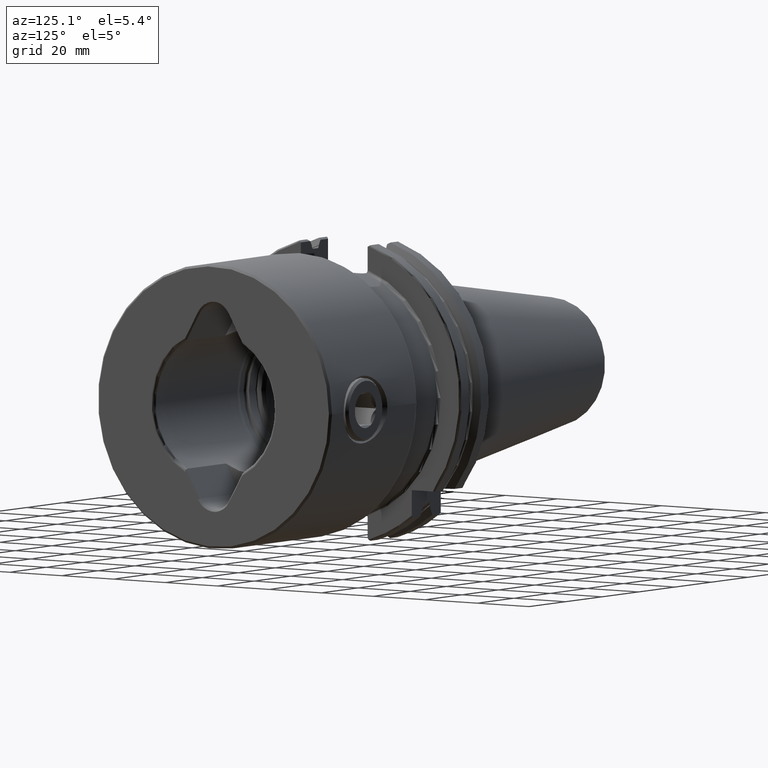
[diagram: clean part render]
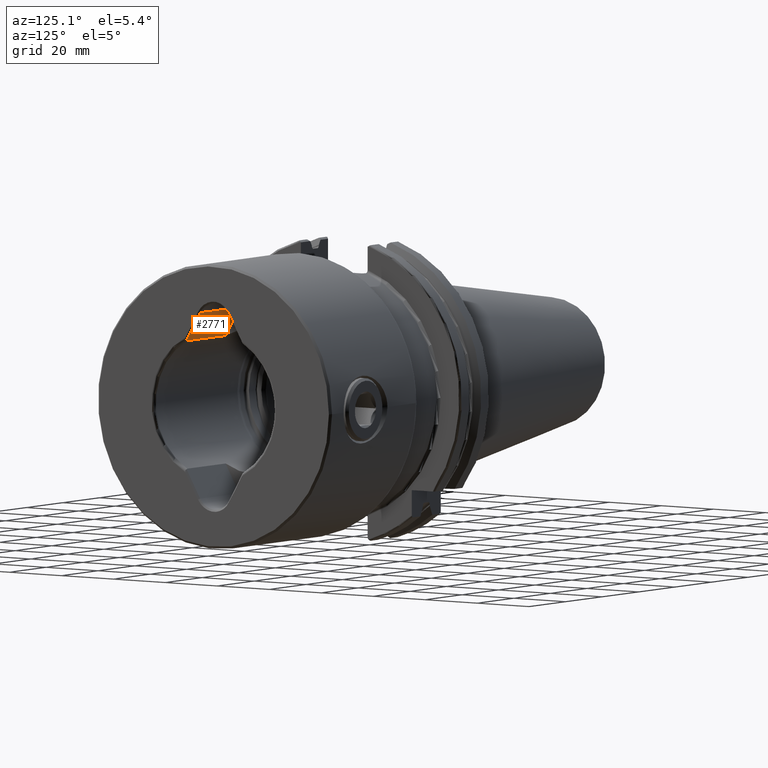
[diagram: same view with one face highlighted and labeled with its STEP entity id]
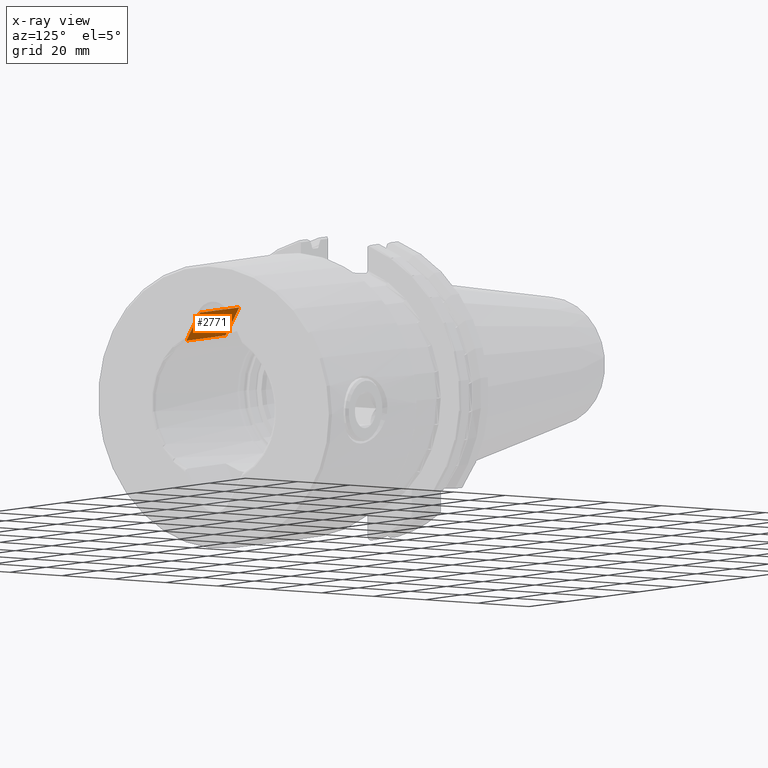
[diagram: x-ray of the same camera — body ghosted, the highlighted face saturated]
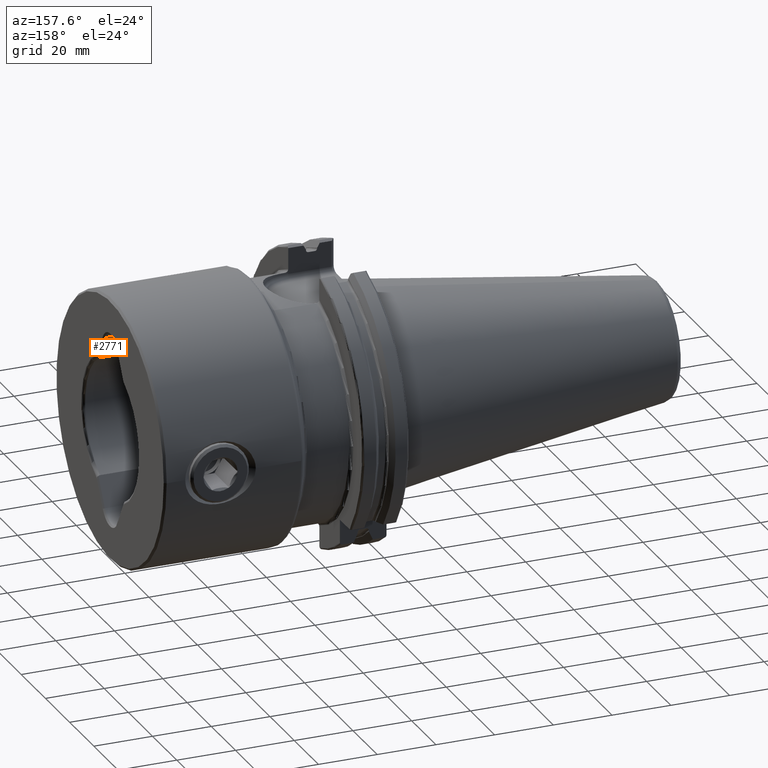
[diagram: same view with one face highlighted and labeled with its STEP entity id]
A machine part, auxiliary view. The second image highlights one B-rep face of the part: STEP entity #2771.
The next image is the same camera in x-ray: the body ghosted, the highlighted face saturated — about 0% of this face is hidden behind the body in this view.
A second angle (auxiliary view) of the same face is appended — the face is thin or edge-on in the first view.
In plain terms, the highlighted planar face has unit normal (0, 0.866, -0.5).
Its self-contained STEP definition (entity closure, byte-faithful):
#22 = EDGE_CURVE ( 'NONE', #1779, #3345, #519, .T. ) ;
#47 = VERTEX_POINT ( 'NONE', #2443 ) ;
#82 = CARTESIAN_POINT ( 'NONE',  ( 62.99999999988631300, -5.629165124598847200, 29.40000000000002000 ) ) ;
#254 = FACE_OUTER_BOUND ( 'NONE', #987, .T. ) ;
#278 = VERTEX_POINT ( 'NONE', #82 ) ;
#281 = DIRECTION ( 'NONE',  ( 1.000000000000000000, -0.0000000000000000000, -0.0000000000000000000 ) ) ;
#376 = CARTESIAN_POINT ( 'NONE',  ( 84.09733759271534800, -10.91466260670260300, 20.24524981771891400 ) ) ;
#435 = CARTESIAN_POINT ( 'NONE',  ( 84.19205809741288200, -10.90062184131696700, 20.26956913674399300 ) ) ;
#519 = LINE ( 'NONE', #4418, #2069 ) ;
#575 = CARTESIAN_POINT ( 'NONE',  ( 62.99999999988631300, -5.629165124598847200, 29.40000000000002000 ) ) ;
#920 = CARTESIAN_POINT ( 'NONE',  ( 62.99999999988631300, -10.91466260670261000, 20.24524981771891100 ) ) ;
#969 = VECTOR ( 'NONE', #4715, 1000.000000000000100 ) ;
#987 = EDGE_LOOP ( 'NONE', ( #3450, #1639, #1030, #4433, #2255 ) ) ;
#1030 = ORIENTED_EDGE ( 'NONE', *, *, #22, .F. ) ;
#1031 = DIRECTION ( 'NONE',  ( 7.850462293468523500E-017, 0.4999999999999985000, 0.8660254037844393700 ) ) ;
#1054 = DIRECTION ( 'NONE',  ( 1.000000000000000000, -0.0000000000000000000, -0.0000000000000000000 ) ) ;
#1481 = EDGE_CURVE ( 'NONE', #278, #1590, #3787, .T. ) ;
#1568 = CARTESIAN_POINT ( 'NONE',  ( 84.43521794263405400, -10.82312084634845200, 20.40380479766659500 ) ) ;
#1590 = VERTEX_POINT ( 'NONE', #2292 ) ;
#1639 = ORIENTED_EDGE ( 'NONE', *, *, #2163, .F. ) ;
#1748 = LINE ( 'NONE', #575, #969 ) ;
#1779 = VERTEX_POINT ( 'NONE', #920 ) ;
#1951 = AXIS2_PLACEMENT_3D ( 'NONE', #2326, #2711, #3044 ) ;
#1981 = LINE ( 'NONE', #3927, #3495 ) ;
#2069 = VECTOR ( 'NONE', #281, 1000.000000000000000 ) ;
#2163 = EDGE_CURVE ( 'NONE', #3345, #47, #2321, .T. ) ;
#2255 = ORIENTED_EDGE ( 'NONE', *, *, #1481, .T. ) ;
#2292 = CARTESIAN_POINT ( 'NONE',  ( 84.49999999988632700, -5.629165124598844500, 29.40000000000001600 ) ) ;
#2321 = B_SPLINE_CURVE_WITH_KNOTS ( 'NONE', 3,
 ( #3008, #376, #435, #3841, #1568, #3825 ),
 .UNSPECIFIED., .F., .F.,
 ( 4, 2, 4 ),
 ( 1.969124869716074900E-007, 0.0002877114490896072500, 0.0005752259856922428400 ),
 .UNSPECIFIED. ) ;
#2326 = CARTESIAN_POINT ( 'NONE',  ( 62.99999999988631300, -5.629165124598847200, 29.40000000000002000 ) ) ;
#2443 = CARTESIAN_POINT ( 'NONE',  ( 84.49999999988631300, -10.78803012059511900, 20.46458371754582800 ) ) ;
#2541 = CARTESIAN_POINT ( 'NONE',  ( 84.00000000000000000, -10.91466260670261000, 20.24524981771891100 ) ) ;
#2563 = CARTESIAN_POINT ( 'NONE',  ( 62.99999999988631300, -5.629165124598847200, 29.40000000000002000 ) ) ;
#2711 = DIRECTION ( 'NONE',  ( 0.0000000000000000000, 0.8660254037844394800, -0.4999999999999985600 ) ) ;
#2771 = ADVANCED_FACE ( 'NONE', ( #254 ), #3765, .T. ) ;
#3008 = CARTESIAN_POINT ( 'NONE',  ( 84.00000000000000000, -10.91466260670261000, 20.24524981771891100 ) ) ;
#3044 = DIRECTION ( 'NONE',  ( 0.0000000000000000000, 0.4999999999999985600, 0.8660254037844394800 ) ) ;
#3186 = EDGE_CURVE ( 'NONE', #1779, #278, #1748, .T. ) ;
#3345 = VERTEX_POINT ( 'NONE', #2541 ) ;
#3450 = ORIENTED_EDGE ( 'NONE', *, *, #4681, .F. ) ;
#3495 = VECTOR ( 'NONE', #1031, 1000.000000000000100 ) ;
#3765 = PLANE ( 'NONE',  #1951 ) ;
#3787 = LINE ( 'NONE', #2563, #3967 ) ;
#3825 = CARTESIAN_POINT ( 'NONE',  ( 84.49999999988631300, -10.78803012059511900, 20.46458371754582800 ) ) ;
#3841 = CARTESIAN_POINT ( 'NONE',  ( 84.36026229296096800, -10.85479730536120300, 20.34893956125263900 ) ) ;
#3927 = CARTESIAN_POINT ( 'NONE',  ( 84.49999999988631300, -5.629165124598848100, 29.40000000000002000 ) ) ;
#3967 = VECTOR ( 'NONE', #1054, 1000.000000000000000 ) ;
#4418 = CARTESIAN_POINT ( 'NONE',  ( 62.99999999988631300, -10.91466260670261000, 20.24524981771891100 ) ) ;
#4433 = ORIENTED_EDGE ( 'NONE', *, *, #3186, .T. ) ;
#4681 = EDGE_CURVE ( 'NONE', #47, #1590, #1981, .T. ) ;
#4715 = DIRECTION ( 'NONE',  ( 0.0000000000000000000, 0.4999999999999985600, 0.8660254037844393700 ) ) ;